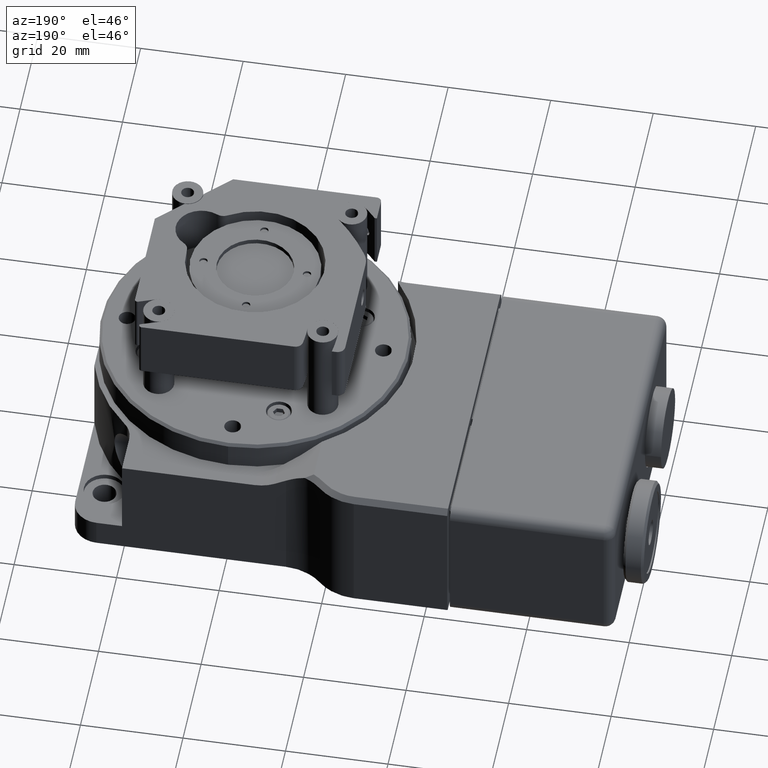
[diagram: clean part render]
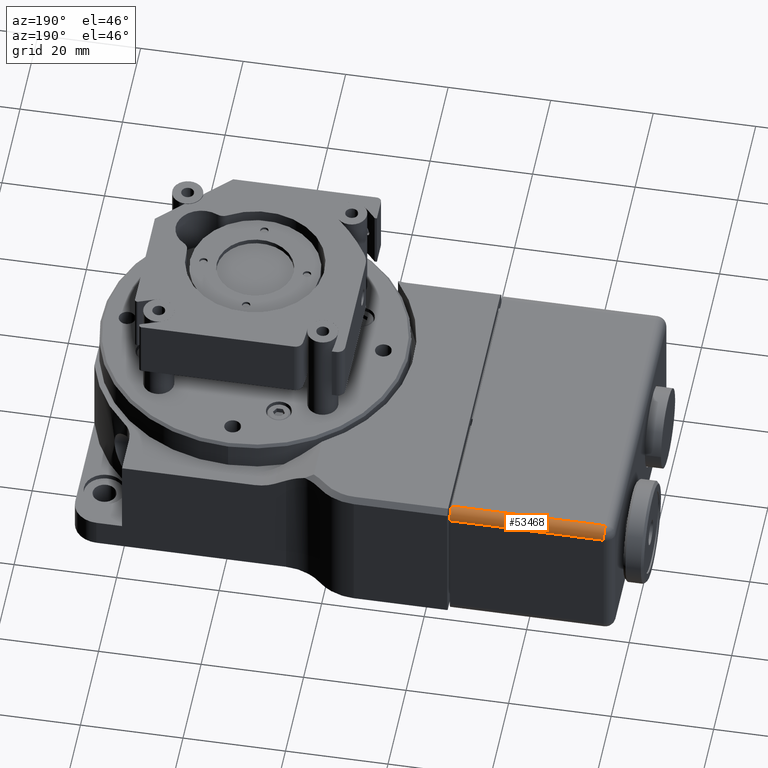
[diagram: same view with one face highlighted and labeled with its STEP entity id]
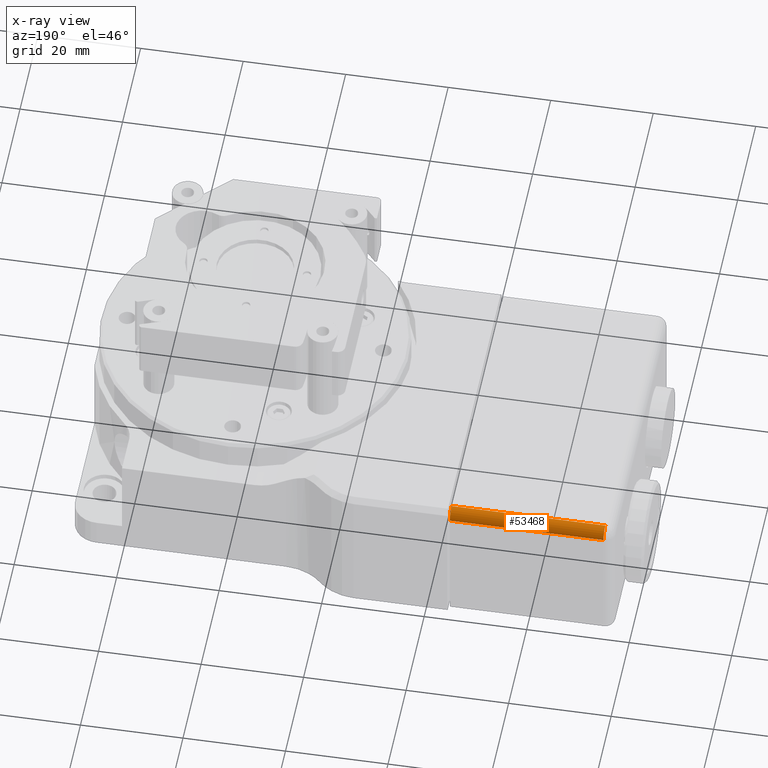
[diagram: x-ray of the same camera — body ghosted, the highlighted face saturated]
A machine part, auxiliary view. The second image highlights one B-rep face of the part: STEP entity #53468.
The next image is the same camera in x-ray: the body ghosted, the highlighted face saturated — about 0% of this face is hidden behind the body in this view.
In plain terms, the highlighted cylindrical surface (edge-blend (fillet) strip) has radius 2 mm, axis along (1, 0, 0).
Its self-contained STEP definition (entity closure, byte-faithful):
#329 = CARTESIAN_POINT ( 'NONE',  ( -2.952755905511811108, 1.574803149606299302, 0.9960629921259842590 ) ) ;
#2045 = EDGE_CURVE ( 'NONE', #27580, #32541, #9390, .T. ) ;
#3791 = B_SPLINE_CURVE_WITH_KNOTS ( 'NONE', 3,
 ( #71469, #5202, #9549, #59920, #49416, #43980, #27264, #14642, #4507, #36749 ),
 .UNSPECIFIED., .F., .F.,
 ( 4, 2, 2, 2, 4 ),
 ( 0.000000000000000000, 0.2500000000000000000, 0.5000000000000000000, 0.7500000000000000000, 1.000000000000000000 ),
 .UNSPECIFIED. ) ;
#4507 = CARTESIAN_POINT ( 'NONE',  ( -1.771653543307087464, 1.574803149606301300, 1.006370054637761635 ) ) ;
#5202 = CARTESIAN_POINT ( 'NONE',  ( -1.771653543307086354, 1.506370054637765854, 1.074803149606298858 ) ) ;
#9174 = EDGE_LOOP ( 'NONE', ( #31640, #49977, #19099, #20597 ) ) ;
#9390 = B_SPLINE_CURVE_WITH_KNOTS ( 'NONE', 3,
 ( #45270, #34380, #17705, #17353, #12616, #32324, #23477, #59870, #61904, #70698 ),
 .UNSPECIFIED., .F., .F.,
 ( 4, 2, 2, 2, 4 ),
 ( 0.000000000000000000, 0.2500000000000000000, 0.5000000000000000000, 0.7500000000000000000, 1.000000000000000000 ),
 .UNSPECIFIED. ) ;
#9549 = CARTESIAN_POINT ( 'NONE',  ( -1.771653543307086798, 1.516673061760577035, 1.072753754068371368 ) ) ;
#10749 = CARTESIAN_POINT ( 'NONE',  ( -2.559055118110236560, 1.496062992125984259, 1.074803149606299080 ) ) ;
#11572 = DIRECTION ( 'NONE',  ( 1.000000000000000000, 2.032562152775284890E-15, 1.224646799147317955E-16 ) ) ;
#12616 = CARTESIAN_POINT ( 'NONE',  ( -2.952755905511811552, 1.559028885228202821, 1.044452497635819821 ) ) ;
#14272 = CARTESIAN_POINT ( 'NONE',  ( -2.559055118110236560, 1.574803149606300634, 0.9960629921259847031 ) ) ;
#14642 = CARTESIAN_POINT ( 'NONE',  ( -1.771653543307087464, 1.572753754068373366, 1.016673061760573260 ) ) ;
#17019 = CARTESIAN_POINT ( 'NONE',  ( -2.716535433070866645, 1.496062992125984259, 0.9960629921259842590 ) ) ;
#17353 = CARTESIAN_POINT ( 'NONE',  ( -2.952755905511811996, 1.564865069949153753, 1.035718029950464247 ) ) ;
#17705 = CARTESIAN_POINT ( 'NONE',  ( -2.952755905511811552, 1.572753754068370924, 1.016673061760573482 ) ) ;
#19099 = ORIENTED_EDGE ( 'NONE', *, *, #51672, .T. ) ;
#19714 = CARTESIAN_POINT ( 'NONE',  ( -2.952755905511811108, 1.574803149606299302, 0.9960629921259842590 ) ) ;
#20597 = ORIENTED_EDGE ( 'NONE', *, *, #67395, .F. ) ;
#22446 = FACE_OUTER_BOUND ( 'NONE', #9174, .T. ) ;
#22809 = DIRECTION ( 'NONE',  ( 0.000000000000000000, 0.7071067811865484609, 0.7071067811865466846 ) ) ;
#23201 = EDGE_CURVE ( 'NONE', #35399, #32541, #61475, .T. ) ;
#23477 = CARTESIAN_POINT ( 'NONE',  ( -2.952755905511811552, 1.535718029950464469, 1.064865069949154197 ) ) ;
#24254 = CARTESIAN_POINT ( 'NONE',  ( -2.952755905511811108, 1.496062992125984259, 1.074803149606299302 ) ) ;
#25612 = CARTESIAN_POINT ( 'NONE',  ( -1.771653543307086576, 1.496062992125984259, 1.074803149606299302 ) ) ;
#27264 = CARTESIAN_POINT ( 'NONE',  ( -1.771653543307087242, 1.564865069949156862, 1.035718029950464247 ) ) ;
#27580 = VERTEX_POINT ( 'NONE', #329 ) ;
#30946 = CARTESIAN_POINT ( 'NONE',  ( -1.771653543307086576, 1.574803149606299302, 0.9960629921259842590 ) ) ;
#31640 = ORIENTED_EDGE ( 'NONE', *, *, #2045, .T. ) ;
#32324 = CARTESIAN_POINT ( 'NONE',  ( -2.952755905511811552, 1.544452497635820043, 1.059028885228203043 ) ) ;
#32541 = VERTEX_POINT ( 'NONE', #24254 ) ;
#32871 = CARTESIAN_POINT ( 'NONE',  ( -2.952755905511811108, 1.496062992125984259, 1.074803149606299302 ) ) ;
#33226 = CARTESIAN_POINT ( 'NONE',  ( -2.165354330708661124, 1.496062992125984259, 1.074803149606299080 ) ) ;
#34380 = CARTESIAN_POINT ( 'NONE',  ( -2.952755905511811996, 1.574803149606298636, 1.006370054637761857 ) ) ;
#35399 = VERTEX_POINT ( 'NONE', #25612 ) ;
#36749 = CARTESIAN_POINT ( 'NONE',  ( -1.771653543307086576, 1.574803149606299302, 0.9960629921259842590 ) ) ;
#43980 = CARTESIAN_POINT ( 'NONE',  ( -1.771653543307086354, 1.559028885228205041, 1.044452497635819599 ) ) ;
#44596 = CYLINDRICAL_SURFACE ( 'NONE', #50756, 0.07874015748031497341 ) ;
#45113 = VERTEX_POINT ( 'NONE', #56242 ) ;
#45270 = CARTESIAN_POINT ( 'NONE',  ( -2.952755905511811108, 1.574803149606299302, 0.9960629921259842590 ) ) ;
#49416 = CARTESIAN_POINT ( 'NONE',  ( -1.771653543307087242, 1.544452497635822930, 1.059028885228202377 ) ) ;
#49977 = ORIENTED_EDGE ( 'NONE', *, *, #23201, .F. ) ;
#50756 = AXIS2_PLACEMENT_3D ( 'NONE', #17019, #11572, #22809 ) ;
#51672 = EDGE_CURVE ( 'NONE', #35399, #45113, #3791, .T. ) ;
#53468 = ADVANCED_FACE ( 'NONE', ( #22446 ), #44596, .T. ) ;
#56242 = CARTESIAN_POINT ( 'NONE',  ( -1.771653543307086576, 1.574803149606299302, 0.9960629921259842590 ) ) ;
#59870 = CARTESIAN_POINT ( 'NONE',  ( -2.952755905511811552, 1.516673061760573260, 1.072753754068371368 ) ) ;
#59920 = CARTESIAN_POINT ( 'NONE',  ( -1.771653543307086354, 1.535718029950467578, 1.064865069949153309 ) ) ;
#60403 = CARTESIAN_POINT ( 'NONE',  ( -1.771653543307086576, 1.496062992125984259, 1.074803149606299302 ) ) ;
#61475 = B_SPLINE_CURVE_WITH_KNOTS ( 'NONE', 3,
 ( #60403, #33226, #10749, #32871 ),
 .UNSPECIFIED., .F., .F.,
 ( 4, 4 ),
 ( 0.000000000000000000, 1.000000000000000000 ),
 .UNSPECIFIED. ) ;
#61904 = CARTESIAN_POINT ( 'NONE',  ( -2.952755905511811552, 1.506370054637762079, 1.074803149606299080 ) ) ;
#67042 = B_SPLINE_CURVE_WITH_KNOTS ( 'NONE', 3,
 ( #19714, #14272, #70402, #30946 ),
 .UNSPECIFIED., .F., .F.,
 ( 4, 4 ),
 ( 0.000000000000000000, 1.000000000000000000 ),
 .UNSPECIFIED. ) ;
#67395 = EDGE_CURVE ( 'NONE', #27580, #45113, #67042, .T. ) ;
#70402 = CARTESIAN_POINT ( 'NONE',  ( -2.165354330708661124, 1.574803149606301300, 0.9960629921259847031 ) ) ;
#70698 = CARTESIAN_POINT ( 'NONE',  ( -2.952755905511811108, 1.496062992125984259, 1.074803149606299302 ) ) ;
#71469 = CARTESIAN_POINT ( 'NONE',  ( -1.771653543307086576, 1.496062992125984259, 1.074803149606299302 ) ) ;